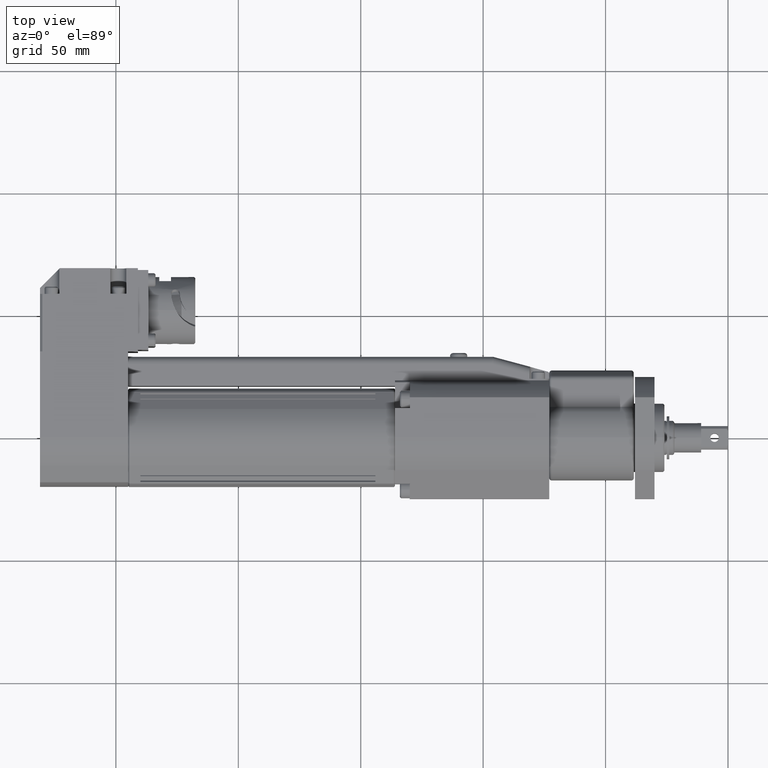
[diagram: clean part render]
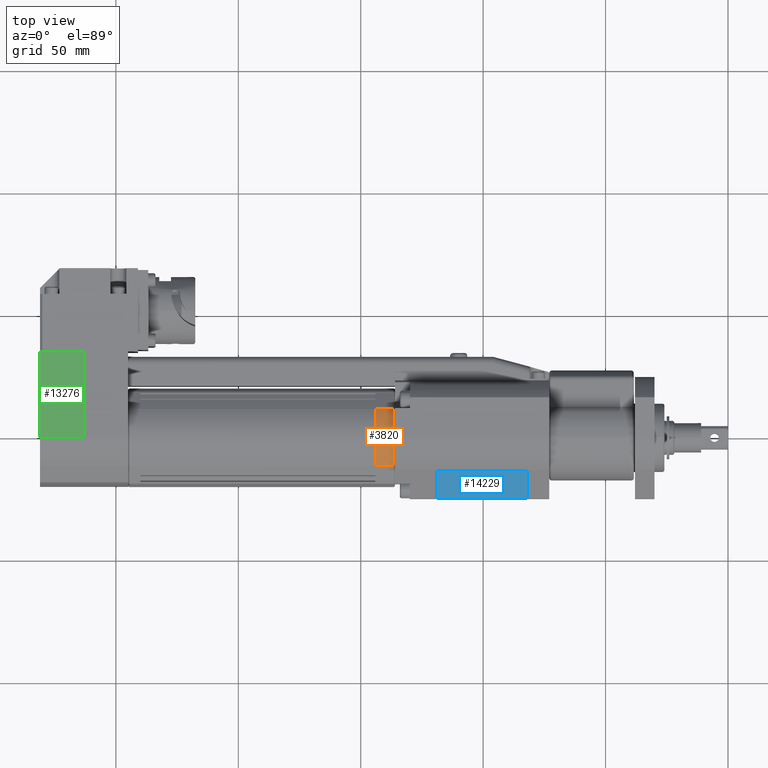
[diagram: same view with three faces highlighted in distinct colors, each labeled with its STEP entity id]
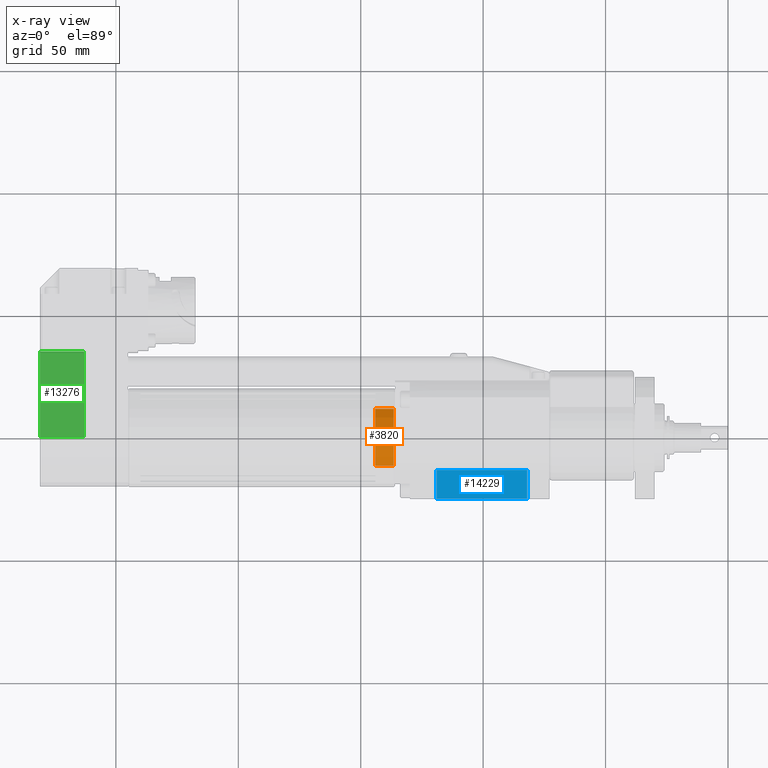
[diagram: x-ray of the same camera — body ghosted, the three highlighted faces saturated]
A machine part, top view with three faces highlighted in distinct colors.
The next image is the same camera in x-ray (body ghosted, the three faces saturated) — at least one of them is partly hidden behind the body in this view.
Their STEP definitions:

[orange] entity #3820 — the highlighted cylindrical surface (partial cylindrical patch) has radius 18.8026 mm, axis along (1, -0, -0).
#592 = CARTESIAN_POINT ( 'NONE',  ( -144.0000000000000300, 11.57606128189029500, 13.79177234348955700 ) ) ;
#1772 = CIRCLE ( 'NONE', #7951, 18.80264032399792700 ) ;
#2006 = EDGE_CURVE ( 'NONE', #2663, #12785, #9786, .T. ) ;
#2061 = CARTESIAN_POINT ( 'NONE',  ( -144.0000000000000300, 11.57606128189029500, 13.79177234348955700 ) ) ;
#2241 = AXIS2_PLACEMENT_3D ( 'NONE', #12601, #5774, #13768 ) ;
#2663 = VERTEX_POINT ( 'NONE', #14308 ) ;
#3082 = CARTESIAN_POINT ( 'NONE',  ( -136.5000000000000300, -5.473303205611593600E-016, -1.024910428020175300 ) ) ;
#3820 = ADVANCED_FACE ( 'NONE', ( #5683 ), #5310, .T. ) ;
#4226 = VECTOR ( 'NONE', #8577, 1000.000000000000000 ) ;
#4246 = DIRECTION ( 'NONE',  ( 0.0000000000000000000, 0.0000000000000000000, 1.000000000000000000 ) ) ;
#4421 = EDGE_CURVE ( 'NONE', #12785, #8941, #6922, .T. ) ;
#5015 = ORIENTED_EDGE ( 'NONE', *, *, #2006, .F. ) ;
#5143 = AXIS2_PLACEMENT_3D ( 'NONE', #13220, #6382, #14381 ) ;
#5310 = CYLINDRICAL_SURFACE ( 'NONE', #11721, 18.80264032399792700 ) ;
#5655 = EDGE_CURVE ( 'NONE', #14151, #7405, #6166, .T. ) ;
#5683 = FACE_OUTER_BOUND ( 'NONE', #13296, .T. ) ;
#5774 = DIRECTION ( 'NONE',  ( -1.000000000000000000, 0.0000000000000000000, 0.0000000000000000000 ) ) ;
#5999 = CARTESIAN_POINT ( 'NONE',  ( -136.5000000000000300, 11.57606128189029500, 13.79177234348955700 ) ) ;
#6122 = VECTOR ( 'NONE', #14032, 1000.000000000000000 ) ;
#6166 = CIRCLE ( 'NONE', #5143, 18.80264032399792700 ) ;
#6382 = DIRECTION ( 'NONE',  ( -1.000000000000000000, -0.0000000000000000000, -0.0000000000000000000 ) ) ;
#6486 = ORIENTED_EDGE ( 'NONE', *, *, #5655, .T. ) ;
#6548 = CARTESIAN_POINT ( 'NONE',  ( -136.5000000000000300, -5.473303205611593600E-016, 17.77772989597775300 ) ) ;
#6856 = EDGE_CURVE ( 'NONE', #7405, #8941, #1772, .T. ) ;
#6922 = LINE ( 'NONE', #592, #4226 ) ;
#7405 = VERTEX_POINT ( 'NONE', #6548 ) ;
#7419 = ORIENTED_EDGE ( 'NONE', *, *, #4421, .F. ) ;
#7510 = ORIENTED_EDGE ( 'NONE', *, *, #14685, .T. ) ;
#7951 = AXIS2_PLACEMENT_3D ( 'NONE', #3082, #11069, #4246 ) ;
#8317 = CARTESIAN_POINT ( 'NONE',  ( -144.0000000000000300, -11.57606128189029000, 13.79177234348956200 ) ) ;
#8577 = DIRECTION ( 'NONE',  ( 1.000000000000000000, -0.0000000000000000000, -0.0000000000000000000 ) ) ;
#8941 = VERTEX_POINT ( 'NONE', #5999 ) ;
#9786 = CIRCLE ( 'NONE', #2241, 18.80264032399792700 ) ;
#10445 = DIRECTION ( 'NONE',  ( 1.000000000000000000, -0.0000000000000000000, -0.0000000000000000000 ) ) ;
#11069 = DIRECTION ( 'NONE',  ( -1.000000000000000000, -0.0000000000000000000, -0.0000000000000000000 ) ) ;
#11551 = CARTESIAN_POINT ( 'NONE',  ( -144.0000000000000300, -5.473303205611593600E-016, -1.024910428020175300 ) ) ;
#11639 = CARTESIAN_POINT ( 'NONE',  ( -136.5000000000000300, -11.57606128189029000, 13.79177234348956200 ) ) ;
#11721 = AXIS2_PLACEMENT_3D ( 'NONE', #11551, #10445, #13874 ) ;
#12178 = LINE ( 'NONE', #8317, #6122 ) ;
#12601 = CARTESIAN_POINT ( 'NONE',  ( -144.0000000000000300, -5.473303205611593600E-016, -1.024910428020175300 ) ) ;
#12785 = VERTEX_POINT ( 'NONE', #2061 ) ;
#13220 = CARTESIAN_POINT ( 'NONE',  ( -136.5000000000000300, -5.473303205611593600E-016, -1.024910428020175300 ) ) ;
#13296 = EDGE_LOOP ( 'NONE', ( #7510, #6486, #13868, #7419, #5015 ) ) ;
#13768 = DIRECTION ( 'NONE',  ( 0.0000000000000000000, 0.0000000000000000000, -1.000000000000000000 ) ) ;
#13868 = ORIENTED_EDGE ( 'NONE', *, *, #6856, .T. ) ;
#13874 = DIRECTION ( 'NONE',  ( 0.0000000000000000000, 0.0000000000000000000, -1.000000000000000000 ) ) ;
#14032 = DIRECTION ( 'NONE',  ( 1.000000000000000000, -0.0000000000000000000, -0.0000000000000000000 ) ) ;
#14151 = VERTEX_POINT ( 'NONE', #11639 ) ;
#14308 = CARTESIAN_POINT ( 'NONE',  ( -144.0000000000000300, -11.57606128189029000, 13.79177234348956200 ) ) ;
#14381 = DIRECTION ( 'NONE',  ( 0.0000000000000000000, 0.0000000000000000000, 1.000000000000000000 ) ) ;
#14685 = EDGE_CURVE ( 'NONE', #2663, #14151, #12178, .T. ) ;

[blue] entity #14229 — the highlighted planar face has unit normal (0, 0.7071, -0.7071).
#100 = EDGE_CURVE ( 'NONE', #12971, #205, #3819, .T. ) ;
#205 = VERTEX_POINT ( 'NONE', #10985 ) ;
#868 = ORIENTED_EDGE ( 'NONE', *, *, #6841, .F. ) ;
#1684 = DIRECTION ( 'NONE',  ( 0.0000000000000000000, 0.7071067811865464600, -0.7071067811865486800 ) ) ;
#2046 = CARTESIAN_POINT ( 'NONE',  ( -119.0000000000000000, -24.92415413562045500, 1.945903549468377400 ) ) ;
#2128 = EDGE_CURVE ( 'NONE', #12971, #12229, #14813, .T. ) ;
#3077 = VECTOR ( 'NONE', #12181, 1000.000000000000000 ) ;
#3102 = FACE_OUTER_BOUND ( 'NONE', #12228, .T. ) ;
#3335 = DIRECTION ( 'NONE',  ( 1.000000000000000000, -0.0000000000000000000, -0.0000000000000000000 ) ) ;
#3546 = DIRECTION ( 'NONE',  ( 0.0000000000000000000, 0.7071067811865486800, 0.7071067811865464600 ) ) ;
#3819 = LINE ( 'NONE', #7987, #12564 ) ;
#6570 = VECTOR ( 'NONE', #3546, 1000.000000000000000 ) ;
#6615 = DIRECTION ( 'NONE',  ( 0.0000000000000000000, 0.7071067811865486800, 0.7071067811865464600 ) ) ;
#6841 = EDGE_CURVE ( 'NONE', #12229, #8933, #9180, .T. ) ;
#7987 = CARTESIAN_POINT ( 'NONE',  ( -119.0000000000000000, -24.92415413562045500, 1.945903549468377400 ) ) ;
#8704 = VECTOR ( 'NONE', #6615, 1000.000000000000000 ) ;
#8933 = VERTEX_POINT ( 'NONE', #10477 ) ;
#9143 = ORIENTED_EDGE ( 'NONE', *, *, #100, .T. ) ;
#9180 = LINE ( 'NONE', #11014, #3077 ) ;
#9220 = EDGE_CURVE ( 'NONE', #205, #8933, #9950, .T. ) ;
#9681 = DIRECTION ( 'NONE',  ( 0.0000000000000000000, 0.7071067811865486800, 0.7071067811865464600 ) ) ;
#9950 = LINE ( 'NONE', #10371, #6570 ) ;
#10371 = CARTESIAN_POINT ( 'NONE',  ( -81.99999999999998600, -24.92415413562045500, 1.945903549468377400 ) ) ;
#10477 = CARTESIAN_POINT ( 'NONE',  ( -81.99999999999998600, -13.43502884254438000, 13.43502884254441700 ) ) ;
#10764 = CARTESIAN_POINT ( 'NONE',  ( -119.0000000000000000, -24.92415413562045500, 1.945903549468377400 ) ) ;
#10907 = AXIS2_PLACEMENT_3D ( 'NONE', #10764, #1684, #9681 ) ;
#10985 = CARTESIAN_POINT ( 'NONE',  ( -81.99999999999998600, -24.92415413562045500, 1.945903549468377400 ) ) ;
#11014 = CARTESIAN_POINT ( 'NONE',  ( -119.0000000000000000, -13.43502884254438000, 13.43502884254441700 ) ) ;
#12181 = DIRECTION ( 'NONE',  ( 1.000000000000000000, -0.0000000000000000000, -0.0000000000000000000 ) ) ;
#12228 = EDGE_LOOP ( 'NONE', ( #13287, #868, #12850, #9143 ) ) ;
#12229 = VERTEX_POINT ( 'NONE', #12700 ) ;
#12564 = VECTOR ( 'NONE', #3335, 1000.000000000000000 ) ;
#12700 = CARTESIAN_POINT ( 'NONE',  ( -119.0000000000000000, -13.43502884254438000, 13.43502884254441700 ) ) ;
#12850 = ORIENTED_EDGE ( 'NONE', *, *, #2128, .F. ) ;
#12971 = VERTEX_POINT ( 'NONE', #13887 ) ;
#13081 = PLANE ( 'NONE',  #10907 ) ;
#13287 = ORIENTED_EDGE ( 'NONE', *, *, #9220, .T. ) ;
#13887 = CARTESIAN_POINT ( 'NONE',  ( -119.0000000000000000, -24.92415413562045500, 1.945903549468377400 ) ) ;
#14229 = ADVANCED_FACE ( 'NONE', ( #3102 ), #13081, .F. ) ;
#14813 = LINE ( 'NONE', #2046, #8704 ) ;

[green] entity #13276 — the highlighted planar face has unit normal (0, -0, -1).
#45 = VECTOR ( 'NONE', #6370, 1000.000000000000000 ) ;
#159 = EDGE_CURVE ( 'NONE', #2547, #11504, #6132, .T. ) ;
#347 = CARTESIAN_POINT ( 'NONE',  ( -263.0000000000000000, -0.003797655402365886700, 18.00305142569867200 ) ) ;
#538 = CARTESIAN_POINT ( 'NONE',  ( -281.0000000000000000, -0.003797655402365886700, 18.00305142569867200 ) ) ;
#1523 = EDGE_LOOP ( 'NONE', ( #8759, #2694, #13980, #10232 ) ) ;
#2068 = CARTESIAN_POINT ( 'NONE',  ( -263.0000000000000000, 34.99620234459764800, 18.00305142569866100 ) ) ;
#2547 = VERTEX_POINT ( 'NONE', #5009 ) ;
#2694 = ORIENTED_EDGE ( 'NONE', *, *, #159, .F. ) ;
#3294 = EDGE_CURVE ( 'NONE', #8897, #11504, #13748, .T. ) ;
#3313 = LINE ( 'NONE', #8073, #9029 ) ;
#3372 = CARTESIAN_POINT ( 'NONE',  ( -281.0000000000000000, -0.003797655402365886700, 18.00305142569867200 ) ) ;
#3481 = DIRECTION ( 'NONE',  ( 0.0000000000000000000, 1.000000000000000000, -2.973811673103097200E-016 ) ) ;
#4257 = DIRECTION ( 'NONE',  ( 1.000000000000000000, -0.0000000000000000000, -0.0000000000000000000 ) ) ;
#4567 = DIRECTION ( 'NONE',  ( 0.0000000000000000000, -2.973811673103097200E-016, -1.000000000000000000 ) ) ;
#4621 = VECTOR ( 'NONE', #14043, 1000.000000000000000 ) ;
#4960 = VECTOR ( 'NONE', #4257, 1000.000000000000000 ) ;
#5009 = CARTESIAN_POINT ( 'NONE',  ( -281.0000000000000000, 34.99620234459764800, 18.00305142569866100 ) ) ;
#6132 = LINE ( 'NONE', #8813, #45 ) ;
#6370 = DIRECTION ( 'NONE',  ( 1.000000000000000000, -0.0000000000000000000, -0.0000000000000000000 ) ) ;
#8073 = CARTESIAN_POINT ( 'NONE',  ( -281.0000000000000000, -0.003797655402365886700, 18.00305142569867200 ) ) ;
#8191 = CARTESIAN_POINT ( 'NONE',  ( -263.0000000000000000, -0.003797655402365886700, 18.00305142569867200 ) ) ;
#8759 = ORIENTED_EDGE ( 'NONE', *, *, #3294, .T. ) ;
#8813 = CARTESIAN_POINT ( 'NONE',  ( -281.0000000000000000, 34.99620234459764800, 18.00305142569866100 ) ) ;
#8897 = VERTEX_POINT ( 'NONE', #8191 ) ;
#9029 = VECTOR ( 'NONE', #3481, 1000.000000000000000 ) ;
#9110 = PLANE ( 'NONE',  #13885 ) ;
#9603 = EDGE_CURVE ( 'NONE', #12537, #8897, #11006, .T. ) ;
#10232 = ORIENTED_EDGE ( 'NONE', *, *, #9603, .T. ) ;
#11006 = LINE ( 'NONE', #12192, #4960 ) ;
#11504 = VERTEX_POINT ( 'NONE', #2068 ) ;
#12192 = CARTESIAN_POINT ( 'NONE',  ( -281.0000000000000000, -0.003797655402365886700, 18.00305142569867200 ) ) ;
#12537 = VERTEX_POINT ( 'NONE', #538 ) ;
#12562 = DIRECTION ( 'NONE',  ( 0.0000000000000000000, 1.000000000000000000, -2.973811673103097200E-016 ) ) ;
#13151 = FACE_OUTER_BOUND ( 'NONE', #1523, .T. ) ;
#13276 = ADVANCED_FACE ( 'NONE', ( #13151 ), #9110, .F. ) ;
#13312 = EDGE_CURVE ( 'NONE', #12537, #2547, #3313, .T. ) ;
#13748 = LINE ( 'NONE', #347, #4621 ) ;
#13885 = AXIS2_PLACEMENT_3D ( 'NONE', #3372, #4567, #12562 ) ;
#13980 = ORIENTED_EDGE ( 'NONE', *, *, #13312, .F. ) ;
#14043 = DIRECTION ( 'NONE',  ( 0.0000000000000000000, 1.000000000000000000, -2.973811673103097200E-016 ) ) ;